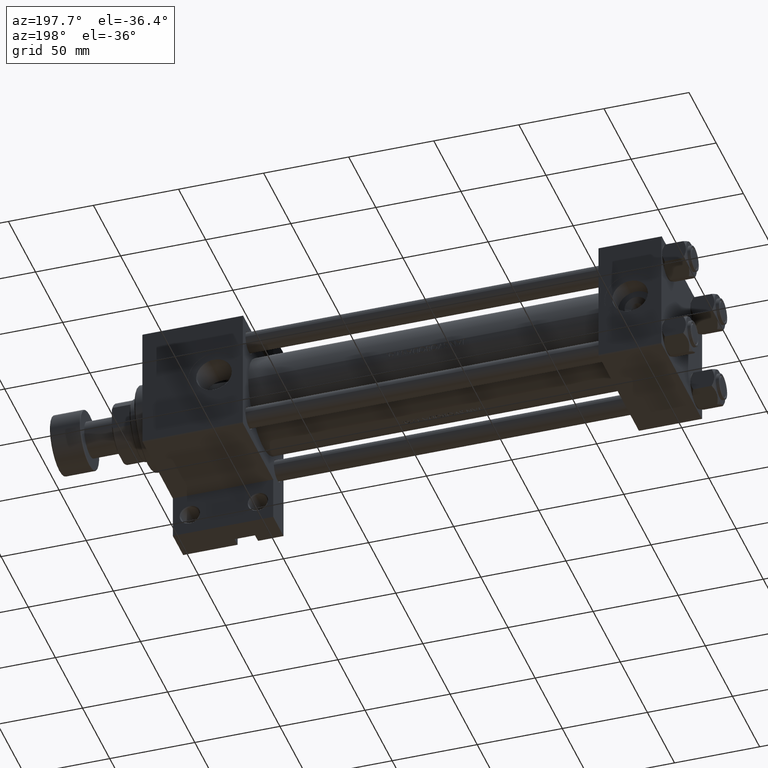
[diagram: clean part render]
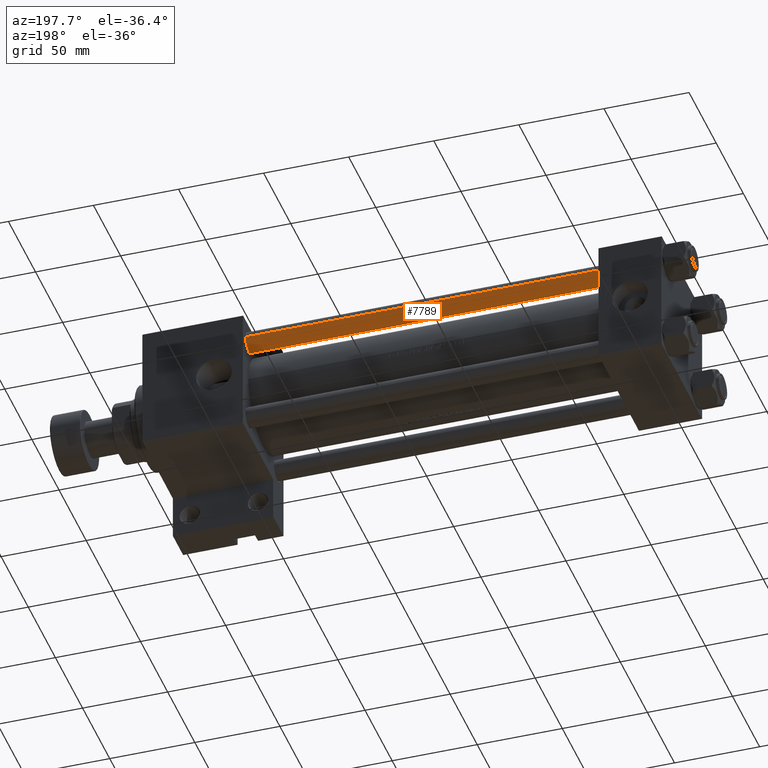
[diagram: same view with one face highlighted and labeled with its STEP entity id]
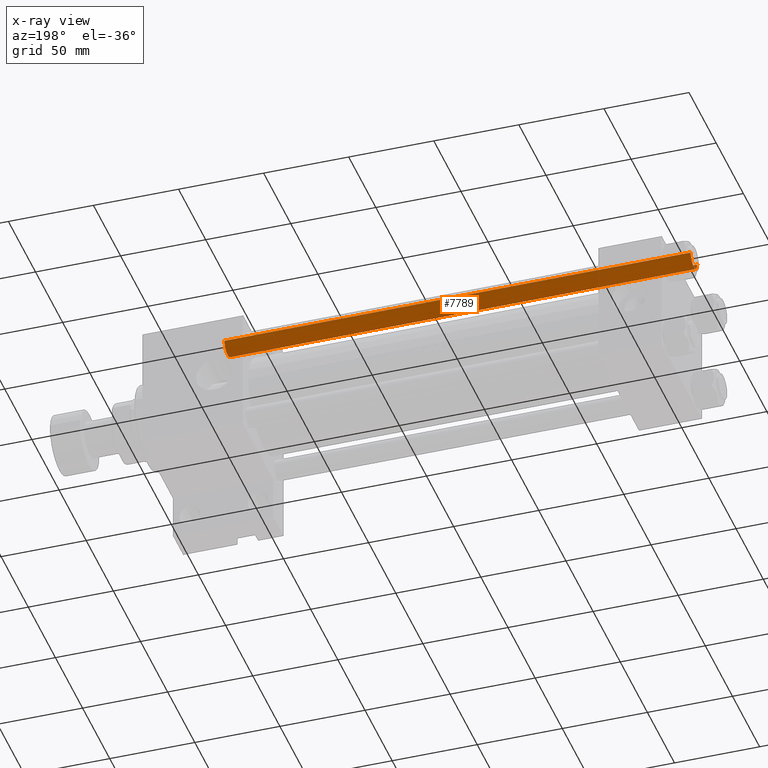
[diagram: x-ray of the same camera — body ghosted, the highlighted face saturated]
A machine part, auxiliary view. The second image highlights one B-rep face of the part: STEP entity #7789.
The next image is the same camera in x-ray: the body ghosted, the highlighted face saturated — about 0% of this face is hidden behind the body in this view.
In plain terms, the highlighted cylindrical surface (edge-blend (fillet) strip) has radius 6 mm, axis along (1, -0, 0).
Its self-contained STEP definition (entity closure, byte-faithful):
#691 = ORIENTED_EDGE ( 'NONE', *, *, #26071, .F. ) ;
#1951 = CARTESIAN_POINT ( 'NONE',  ( -6.000000000000000888, 0.000000000000000000, 0.5000000000000559552 ) ) ;
#4094 = CARTESIAN_POINT ( 'NONE',  ( -6.000000000000000888, 0.000000000000000000, 275.0000000000000000 ) ) ;
#5409 = FACE_OUTER_BOUND ( 'NONE', #40572, .T. ) ;
#5659 = CYLINDRICAL_SURFACE ( 'NONE', #31029, 6.000000000000000888 ) ;
#5802 = VERTEX_POINT ( 'NONE', #29595 ) ;
#7533 = CARTESIAN_POINT ( 'NONE',  ( 0.000000000000000000, 0.000000000000000000, 274.5000000000000000 ) ) ;
#7789 = ADVANCED_FACE ( 'NONE', ( #5409 ), #5659, .T. ) ;
#10889 = CARTESIAN_POINT ( 'NONE',  ( 0.000000000000000000, 0.000000000000000000, 0.5000000000000559552 ) ) ;
#13531 = DIRECTION ( 'NONE',  ( -0.000000000000000000, -0.000000000000000000, -1.000000000000000000 ) ) ;
#15236 = VECTOR ( 'NONE', #19316, 1000.000000000000000 ) ;
#19316 = DIRECTION ( 'NONE',  ( -0.000000000000000000, -0.000000000000000000, -1.000000000000000000 ) ) ;
#20727 = ORIENTED_EDGE ( 'NONE', *, *, #35290, .T. ) ;
#22669 = CIRCLE ( 'NONE', #34125, 6.000000000000000888 ) ;
#23037 = CARTESIAN_POINT ( 'NONE',  ( -6.000000000000000888, 0.000000000000000000, 274.5000000000000000 ) ) ;
#23573 = ORIENTED_EDGE ( 'NONE', *, *, #38489, .T. ) ;
#23860 = CARTESIAN_POINT ( 'NONE',  ( 6.000000000000000888, 7.347880794884120722E-16, 275.0000000000000000 ) ) ;
#26071 = EDGE_CURVE ( 'NONE', #38899, #31727, #34788, .T. ) ;
#26216 = ORIENTED_EDGE ( 'NONE', *, *, #39758, .T. ) ;
#26301 = DIRECTION ( 'NONE',  ( 0.000000000000000000, 0.000000000000000000, -1.000000000000000000 ) ) ;
#27417 = LINE ( 'NONE', #23860, #42879 ) ;
#29221 = AXIS2_PLACEMENT_3D ( 'NONE', #7533, #26301, #38475 ) ;
#29595 = CARTESIAN_POINT ( 'NONE',  ( 6.000000000000000888, 7.347880794884120722E-16, 0.5000000000000559552 ) ) ;
#30872 = CARTESIAN_POINT ( 'NONE',  ( 6.000000000000000888, 7.347880794884120722E-16, 274.5000000000000000 ) ) ;
#31029 = AXIS2_PLACEMENT_3D ( 'NONE', #35873, #13531, #44457 ) ;
#31727 = VERTEX_POINT ( 'NONE', #1951 ) ;
#34125 = AXIS2_PLACEMENT_3D ( 'NONE', #10889, #49937, #46134 ) ;
#34774 = DIRECTION ( 'NONE',  ( -0.000000000000000000, -0.000000000000000000, -1.000000000000000000 ) ) ;
#34788 = LINE ( 'NONE', #4094, #15236 ) ;
#35290 = EDGE_CURVE ( 'NONE', #43159, #5802, #27417, .T. ) ;
#35873 = CARTESIAN_POINT ( 'NONE',  ( 0.000000000000000000, 0.000000000000000000, 275.0000000000000000 ) ) ;
#38475 = DIRECTION ( 'NONE',  ( 1.000000000000000000, 0.000000000000000000, 0.000000000000000000 ) ) ;
#38489 = EDGE_CURVE ( 'NONE', #38899, #43159, #42988, .T. ) ;
#38899 = VERTEX_POINT ( 'NONE', #23037 ) ;
#39758 = EDGE_CURVE ( 'NONE', #5802, #31727, #22669, .T. ) ;
#40572 = EDGE_LOOP ( 'NONE', ( #23573, #20727, #26216, #691 ) ) ;
#42879 = VECTOR ( 'NONE', #34774, 1000.000000000000000 ) ;
#42988 = CIRCLE ( 'NONE', #29221, 6.000000000000000888 ) ;
#43159 = VERTEX_POINT ( 'NONE', #30872 ) ;
#44457 = DIRECTION ( 'NONE',  ( -1.000000000000000000, 0.000000000000000000, 0.000000000000000000 ) ) ;
#46134 = DIRECTION ( 'NONE',  ( 1.000000000000000000, 0.000000000000000000, 0.000000000000000000 ) ) ;
#49937 = DIRECTION ( 'NONE',  ( -0.000000000000000000, -0.000000000000000000, 1.000000000000000000 ) ) ;